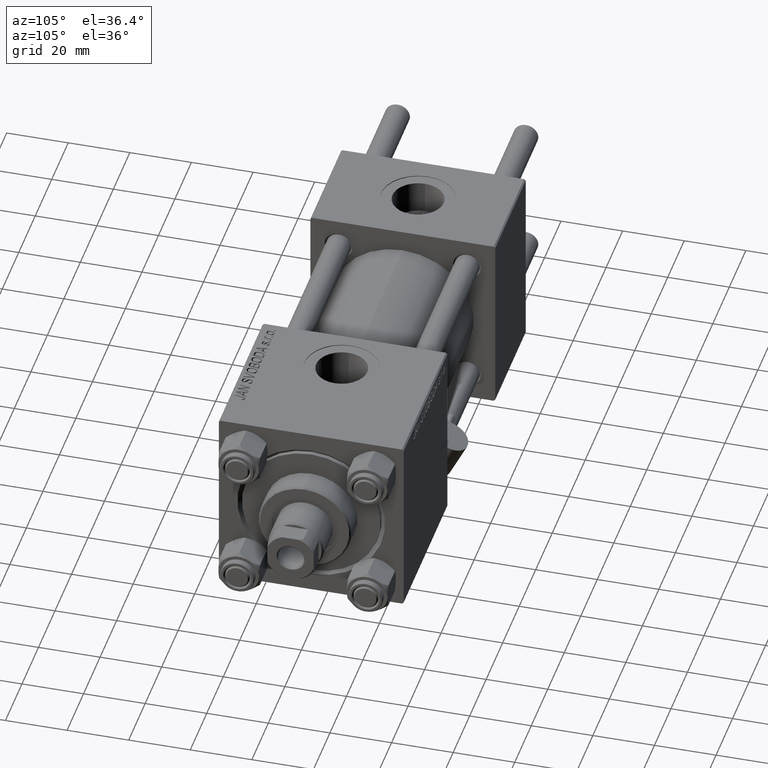
[diagram: clean part render]
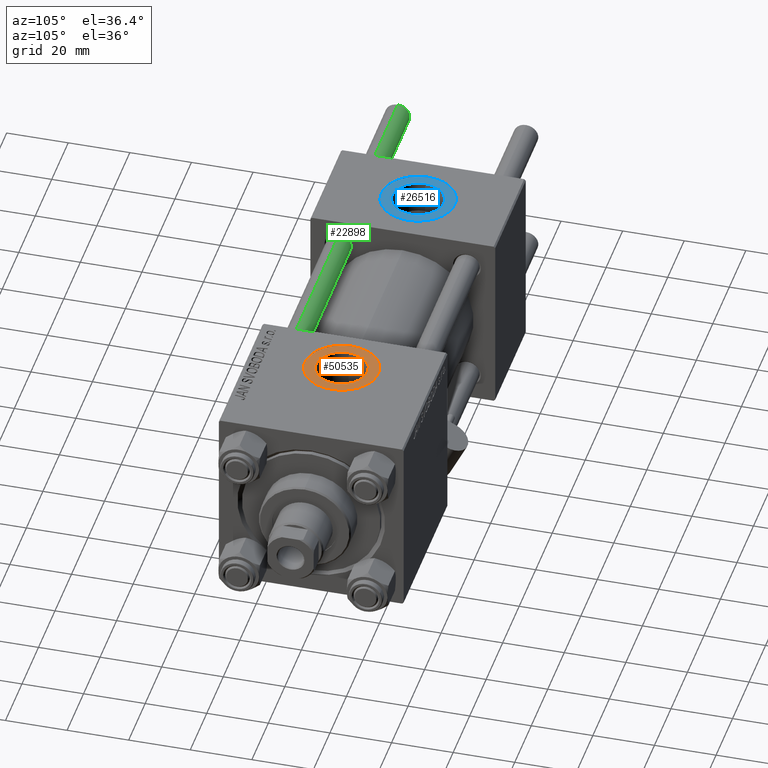
[diagram: same view with three faces highlighted in distinct colors, each labeled with its STEP entity id]
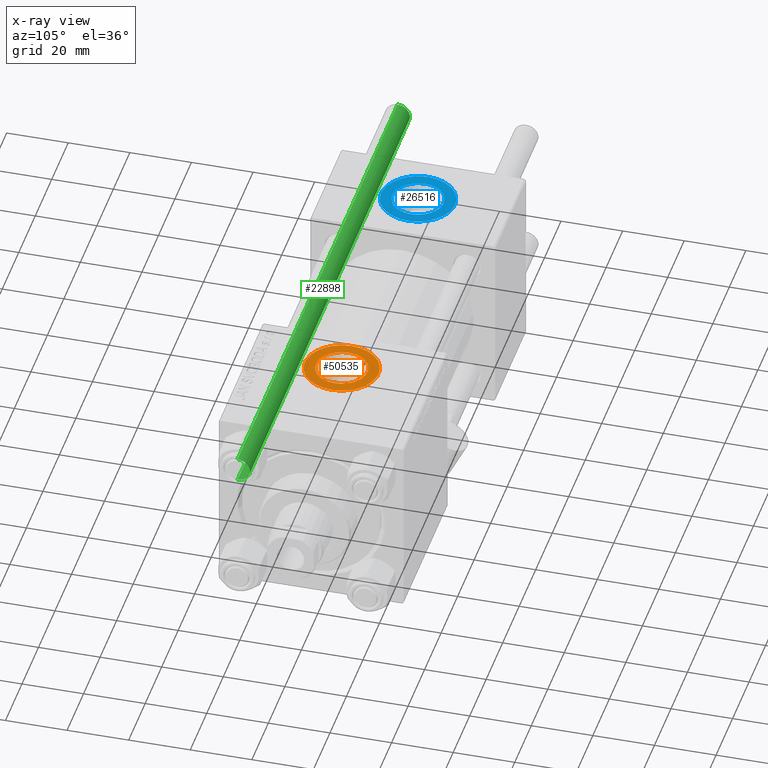
[diagram: x-ray of the same camera — body ghosted, the three highlighted faces saturated]
A machine part, auxiliary view with three faces highlighted in distinct colors.
The next image is the same camera in x-ray (body ghosted, the three faces saturated) — at least one of them is partly hidden behind the body in this view.
Their STEP definitions:

[orange] entity #50535 — the highlighted planar face has unit normal (0, 0, 1).
#2075 = FACE_BOUND ( 'NONE', #29634, .T. ) ;
#2408 = CARTESIAN_POINT ( 'NONE',  ( 111.0000000000000000, -3.469446951953613794E-15, 29.79999999999999716 ) ) ;
#2593 = CARTESIAN_POINT ( 'NONE',  ( 111.0000000000000000, -3.469446951953613794E-15, 29.79999999999999716 ) ) ;
#3947 = CIRCLE ( 'NONE', #12979, 11.99999999999999645 ) ;
#4395 = DIRECTION ( 'NONE',  ( 0.000000000000000000, 0.000000000000000000, 1.000000000000000000 ) ) ;
#6201 = FACE_OUTER_BOUND ( 'NONE', #19547, .T. ) ;
#6704 = ORIENTED_EDGE ( 'NONE', *, *, #13450, .T. ) ;
#7768 = DIRECTION ( 'NONE',  ( 1.000000000000000000, 0.000000000000000000, 0.000000000000000000 ) ) ;
#9344 = VERTEX_POINT ( 'NONE', #33195 ) ;
#10061 = DIRECTION ( 'NONE',  ( 0.000000000000000000, 0.000000000000000000, 1.000000000000000000 ) ) ;
#10575 = DIRECTION ( 'NONE',  ( 0.000000000000000000, 0.000000000000000000, 1.000000000000000000 ) ) ;
#10625 = CARTESIAN_POINT ( 'NONE',  ( 111.0000000000000000, -3.469446951953613794E-15, 29.79999999999999716 ) ) ;
#12979 = AXIS2_PLACEMENT_3D ( 'NONE', #27310, #4395, #7768 ) ;
#13450 = EDGE_CURVE ( 'NONE', #49788, #37327, #37980, .T. ) ;
#13665 = DIRECTION ( 'NONE',  ( 1.000000000000000000, 0.000000000000000000, -0.000000000000000000 ) ) ;
#15520 = EDGE_CURVE ( 'NONE', #44748, #9344, #16663, .T. ) ;
#16523 = AXIS2_PLACEMENT_3D ( 'NONE', #2593, #10061, #13665 ) ;
#16663 = CIRCLE ( 'NONE', #42970, 8.330000000000003624 ) ;
#19547 = EDGE_LOOP ( 'NONE', ( #6704, #32122 ) ) ;
#19942 = EDGE_CURVE ( 'NONE', #9344, #44748, #48715, .T. ) ;
#26776 = ORIENTED_EDGE ( 'NONE', *, *, #19942, .T. ) ;
#27310 = CARTESIAN_POINT ( 'NONE',  ( 111.0000000000000000, -3.469446951953613794E-15, 29.79999999999999716 ) ) ;
#28088 = AXIS2_PLACEMENT_3D ( 'NONE', #29345, #10575, #37316 ) ;
#29345 = CARTESIAN_POINT ( 'NONE',  ( 111.0000000000000000, -3.469446951953613794E-15, 29.79999999999999716 ) ) ;
#29634 = EDGE_LOOP ( 'NONE', ( #26776, #40702 ) ) ;
#30384 = PLANE ( 'NONE',  #16523 ) ;
#30668 = AXIS2_PLACEMENT_3D ( 'NONE', #10625, #38654, #49999 ) ;
#32122 = ORIENTED_EDGE ( 'NONE', *, *, #34944, .T. ) ;
#33195 = CARTESIAN_POINT ( 'NONE',  ( 102.6700000000000017, -3.469446951953613794E-15, 29.79999999999999716 ) ) ;
#33273 = CARTESIAN_POINT ( 'NONE',  ( 123.0000000000000000, -3.469446951953613794E-15, 29.79999999999999716 ) ) ;
#33543 = DIRECTION ( 'NONE',  ( -0.000000000000000000, -0.000000000000000000, -1.000000000000000000 ) ) ;
#34944 = EDGE_CURVE ( 'NONE', #37327, #49788, #3947, .T. ) ;
#37316 = DIRECTION ( 'NONE',  ( 1.000000000000000000, 0.000000000000000000, 0.000000000000000000 ) ) ;
#37327 = VERTEX_POINT ( 'NONE', #48341 ) ;
#37980 = CIRCLE ( 'NONE', #28088, 11.99999999999999645 ) ;
#38654 = DIRECTION ( 'NONE',  ( -0.000000000000000000, -0.000000000000000000, -1.000000000000000000 ) ) ;
#40702 = ORIENTED_EDGE ( 'NONE', *, *, #15520, .T. ) ;
#42970 = AXIS2_PLACEMENT_3D ( 'NONE', #2408, #33543, #45099 ) ;
#43867 = CARTESIAN_POINT ( 'NONE',  ( 119.3300000000000125, -2.449316168263869821E-15, 29.79999999999999716 ) ) ;
#44748 = VERTEX_POINT ( 'NONE', #43867 ) ;
#45099 = DIRECTION ( 'NONE',  ( 1.000000000000000000, 0.000000000000000000, 0.000000000000000000 ) ) ;
#48341 = CARTESIAN_POINT ( 'NONE',  ( 99.00000000000000000, -1.999870792976792017E-15, 29.79999999999999716 ) ) ;
#48715 = CIRCLE ( 'NONE', #30668, 8.330000000000003624 ) ;
#49788 = VERTEX_POINT ( 'NONE', #33273 ) ;
#49999 = DIRECTION ( 'NONE',  ( 1.000000000000000000, 0.000000000000000000, 0.000000000000000000 ) ) ;
#50535 = ADVANCED_FACE ( 'NONE', ( #2075, #6201 ), #30384, .T. ) ;

[blue] entity #26516 — the highlighted planar face has unit normal (0, 0, 1).
#1440 = ORIENTED_EDGE ( 'NONE', *, *, #12263, .T. ) ;
#2234 = CARTESIAN_POINT ( 'NONE',  ( 6.499999999999997335, -1.999870792976790833E-15, 29.79999999999999716 ) ) ;
#3223 = AXIS2_PLACEMENT_3D ( 'NONE', #32461, #28606, #9058 ) ;
#3770 = CARTESIAN_POINT ( 'NONE',  ( 18.50000000000000000, -3.469446951953614978E-15, 29.79999999999999716 ) ) ;
#4077 = EDGE_LOOP ( 'NONE', ( #41439, #22216 ) ) ;
#4517 = DIRECTION ( 'NONE',  ( 1.000000000000000000, 0.000000000000000000, -0.000000000000000000 ) ) ;
#6131 = VERTEX_POINT ( 'NONE', #11215 ) ;
#6410 = EDGE_LOOP ( 'NONE', ( #9815, #1440 ) ) ;
#7307 = CIRCLE ( 'NONE', #3223, 12.00000000000000000 ) ;
#7756 = CARTESIAN_POINT ( 'NONE',  ( 18.50000000000000000, -3.469446951953614978E-15, 29.79999999999999716 ) ) ;
#9058 = DIRECTION ( 'NONE',  ( 1.000000000000000000, 0.000000000000000000, 0.000000000000000000 ) ) ;
#9815 = ORIENTED_EDGE ( 'NONE', *, *, #36887, .T. ) ;
#10171 = DIRECTION ( 'NONE',  ( 1.000000000000000000, 0.000000000000000000, 0.000000000000000000 ) ) ;
#10935 = CARTESIAN_POINT ( 'NONE',  ( 18.50000000000000000, -3.469446951953614978E-15, 29.79999999999999716 ) ) ;
#11215 = CARTESIAN_POINT ( 'NONE',  ( 10.16999999999999638, -2.449316168263869821E-15, 29.79999999999999716 ) ) ;
#12163 = CARTESIAN_POINT ( 'NONE',  ( 30.50000000000000000, -3.469446951953614978E-15, 29.79999999999999716 ) ) ;
#12263 = EDGE_CURVE ( 'NONE', #18581, #32736, #47764, .T. ) ;
#12913 = AXIS2_PLACEMENT_3D ( 'NONE', #7756, #46842, #23439 ) ;
#15366 = FACE_BOUND ( 'NONE', #4077, .T. ) ;
#18581 = VERTEX_POINT ( 'NONE', #2234 ) ;
#18657 = DIRECTION ( 'NONE',  ( 0.000000000000000000, 0.000000000000000000, 1.000000000000000000 ) ) ;
#18917 = EDGE_CURVE ( 'NONE', #23303, #6131, #43757, .T. ) ;
#19131 = AXIS2_PLACEMENT_3D ( 'NONE', #25079, #40768, #46348 ) ;
#22216 = ORIENTED_EDGE ( 'NONE', *, *, #33558, .F. ) ;
#23303 = VERTEX_POINT ( 'NONE', #50680 ) ;
#23439 = DIRECTION ( 'NONE',  ( 1.000000000000000000, 0.000000000000000000, 0.000000000000000000 ) ) ;
#25079 = CARTESIAN_POINT ( 'NONE',  ( 18.50000000000000000, -3.469446951953614978E-15, 29.79999999999999716 ) ) ;
#26516 = ADVANCED_FACE ( 'NONE', ( #15366, #31545 ), #27688, .T. ) ;
#27688 = PLANE ( 'NONE',  #28409 ) ;
#28409 = AXIS2_PLACEMENT_3D ( 'NONE', #3770, #46973, #4517 ) ;
#28606 = DIRECTION ( 'NONE',  ( 0.000000000000000000, 0.000000000000000000, 1.000000000000000000 ) ) ;
#31545 = FACE_OUTER_BOUND ( 'NONE', #6410, .T. ) ;
#32461 = CARTESIAN_POINT ( 'NONE',  ( 18.50000000000000000, -3.469446951953614978E-15, 29.79999999999999716 ) ) ;
#32736 = VERTEX_POINT ( 'NONE', #12163 ) ;
#33558 = EDGE_CURVE ( 'NONE', #6131, #23303, #35096, .T. ) ;
#35096 = CIRCLE ( 'NONE', #12913, 8.330000000000000071 ) ;
#36887 = EDGE_CURVE ( 'NONE', #32736, #18581, #7307, .T. ) ;
#38750 = AXIS2_PLACEMENT_3D ( 'NONE', #10935, #18657, #10171 ) ;
#40768 = DIRECTION ( 'NONE',  ( 0.000000000000000000, 0.000000000000000000, 1.000000000000000000 ) ) ;
#41439 = ORIENTED_EDGE ( 'NONE', *, *, #18917, .F. ) ;
#43757 = CIRCLE ( 'NONE', #19131, 8.330000000000000071 ) ;
#46348 = DIRECTION ( 'NONE',  ( 1.000000000000000000, 0.000000000000000000, 0.000000000000000000 ) ) ;
#46842 = DIRECTION ( 'NONE',  ( 0.000000000000000000, 0.000000000000000000, 1.000000000000000000 ) ) ;
#46973 = DIRECTION ( 'NONE',  ( 0.000000000000000000, 0.000000000000000000, 1.000000000000000000 ) ) ;
#47764 = CIRCLE ( 'NONE', #38750, 12.00000000000000000 ) ;
#50680 = CARTESIAN_POINT ( 'NONE',  ( 26.82999999999999829, -3.469446951953614978E-15, 29.79999999999999716 ) ) ;

[green] entity #22898 — the highlighted cylindrical surface (edge-blend (fillet) strip) has radius 4 mm, axis along (1, -0, 0).
#341 = DIRECTION ( 'NONE',  ( -0.000000000000000000, -0.000000000000000000, -1.000000000000000000 ) ) ;
#4247 = DIRECTION ( 'NONE',  ( -0.000000000000000000, -0.000000000000000000, -1.000000000000000000 ) ) ;
#5375 = EDGE_CURVE ( 'NONE', #18319, #50360, #31281, .T. ) ;
#5916 = CARTESIAN_POINT ( 'NONE',  ( 0.000000000000000000, 0.000000000000000000, 194.5000000000000568 ) ) ;
#6033 = EDGE_CURVE ( 'NONE', #45623, #50360, #27580, .T. ) ;
#8055 = CARTESIAN_POINT ( 'NONE',  ( -4.000000000000000000, 0.000000000000000000, 194.5000000000000568 ) ) ;
#8470 = EDGE_CURVE ( 'NONE', #21928, #45623, #10314, .T. ) ;
#10314 = LINE ( 'NONE', #20855, #32447 ) ;
#11107 = VECTOR ( 'NONE', #4247, 1000.000000000000000 ) ;
#16541 = CARTESIAN_POINT ( 'NONE',  ( 0.000000000000000000, 0.000000000000000000, 195.0000000000000000 ) ) ;
#16791 = CYLINDRICAL_SURFACE ( 'NONE', #29100, 4.000000000000000000 ) ;
#18319 = VERTEX_POINT ( 'NONE', #23129 ) ;
#19716 = ORIENTED_EDGE ( 'NONE', *, *, #8470, .T. ) ;
#20855 = CARTESIAN_POINT ( 'NONE',  ( -4.000000000000000000, 0.000000000000000000, 195.0000000000000000 ) ) ;
#21928 = VERTEX_POINT ( 'NONE', #8055 ) ;
#22898 = ADVANCED_FACE ( 'NONE', ( #47917 ), #16791, .T. ) ;
#23129 = CARTESIAN_POINT ( 'NONE',  ( 4.000000000000000000, 4.898587196589412829E-16, 194.5000000000000568 ) ) ;
#23970 = CARTESIAN_POINT ( 'NONE',  ( 4.000000000000000000, 4.898587196589412829E-16, 0.5000000000000004441 ) ) ;
#25261 = EDGE_LOOP ( 'NONE', ( #25954, #31246, #19716, #32639 ) ) ;
#25954 = ORIENTED_EDGE ( 'NONE', *, *, #5375, .F. ) ;
#27580 = CIRCLE ( 'NONE', #31687, 4.000000000000000000 ) ;
#29100 = AXIS2_PLACEMENT_3D ( 'NONE', #16541, #341, #36335 ) ;
#31246 = ORIENTED_EDGE ( 'NONE', *, *, #44201, .T. ) ;
#31281 = LINE ( 'NONE', #46955, #11107 ) ;
#31687 = AXIS2_PLACEMENT_3D ( 'NONE', #33083, #48774, #33601 ) ;
#32447 = VECTOR ( 'NONE', #44766, 1000.000000000000000 ) ;
#32639 = ORIENTED_EDGE ( 'NONE', *, *, #6033, .T. ) ;
#33083 = CARTESIAN_POINT ( 'NONE',  ( 0.000000000000000000, 0.000000000000000000, 0.5000000000000004441 ) ) ;
#33601 = DIRECTION ( 'NONE',  ( 1.000000000000000000, 0.000000000000000000, 0.000000000000000000 ) ) ;
#33912 = CARTESIAN_POINT ( 'NONE',  ( -4.000000000000000000, 0.000000000000000000, 0.5000000000000004441 ) ) ;
#34393 = AXIS2_PLACEMENT_3D ( 'NONE', #5916, #44744, #36786 ) ;
#36012 = CIRCLE ( 'NONE', #34393, 4.000000000000000000 ) ;
#36335 = DIRECTION ( 'NONE',  ( -1.000000000000000000, 0.000000000000000000, 0.000000000000000000 ) ) ;
#36786 = DIRECTION ( 'NONE',  ( 1.000000000000000000, 0.000000000000000000, 0.000000000000000000 ) ) ;
#44201 = EDGE_CURVE ( 'NONE', #18319, #21928, #36012, .T. ) ;
#44744 = DIRECTION ( 'NONE',  ( 0.000000000000000000, 0.000000000000000000, -1.000000000000000000 ) ) ;
#44766 = DIRECTION ( 'NONE',  ( -0.000000000000000000, -0.000000000000000000, -1.000000000000000000 ) ) ;
#45623 = VERTEX_POINT ( 'NONE', #33912 ) ;
#46955 = CARTESIAN_POINT ( 'NONE',  ( 4.000000000000000000, 4.898587196589412829E-16, 195.0000000000000000 ) ) ;
#47917 = FACE_OUTER_BOUND ( 'NONE', #25261, .T. ) ;
#48774 = DIRECTION ( 'NONE',  ( -0.000000000000000000, -0.000000000000000000, 1.000000000000000000 ) ) ;
#50360 = VERTEX_POINT ( 'NONE', #23970 ) ;